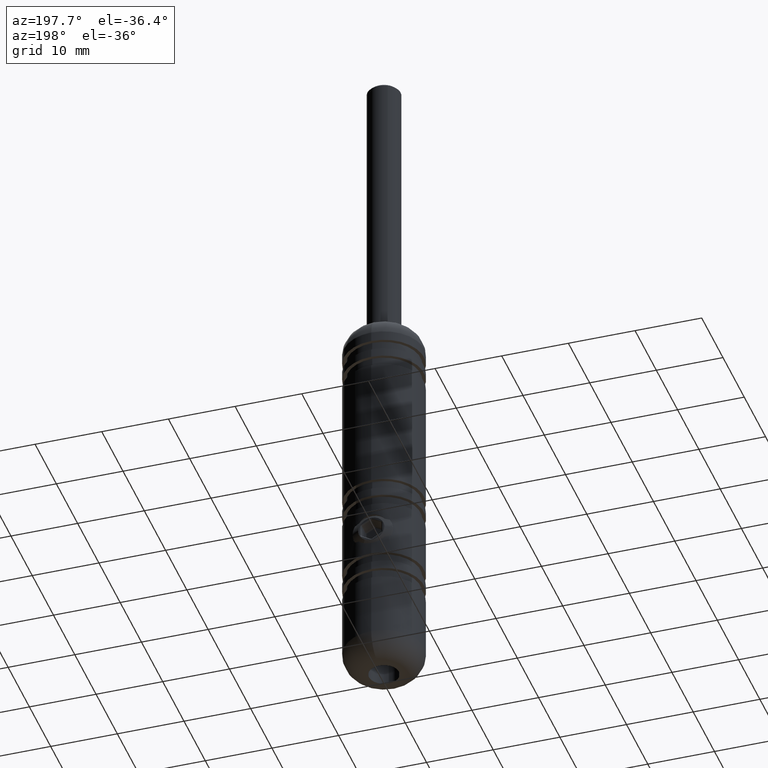
[diagram: clean part render]
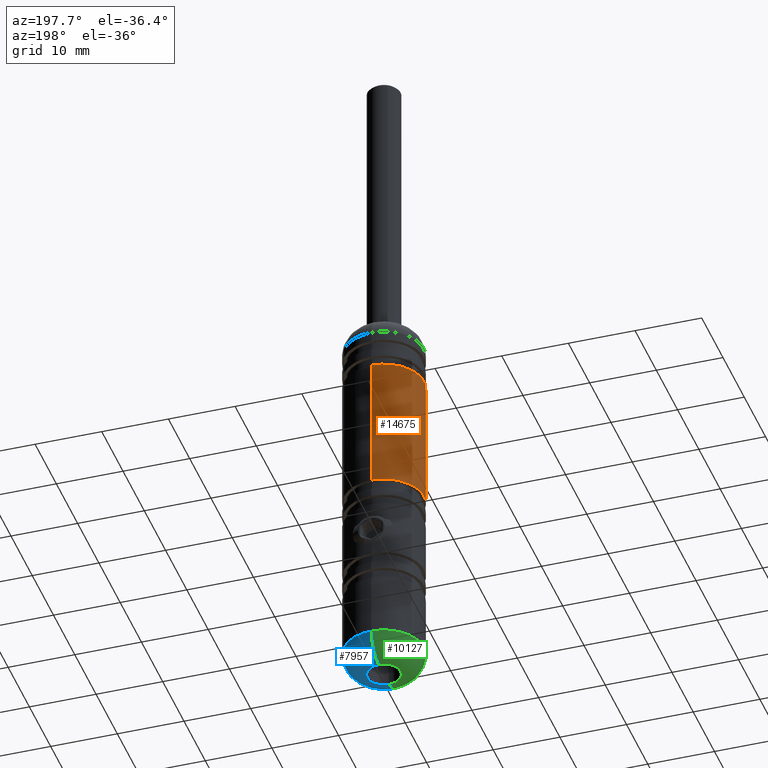
[diagram: same view with three faces highlighted in distinct colors, each labeled with its STEP entity id]
A machine part, auxiliary view with three faces highlighted in distinct colors.
Their STEP definitions:

[orange] entity #14675 — the highlighted cylindrical surface (partial cylindrical patch) has radius 6 mm, axis along (0, 0, 1).
#32 = VECTOR ( 'NONE', #9447, 1000.000000000000000 ) ;
#939 = CARTESIAN_POINT ( 'NONE',  ( -2.370510600221101200, -5.512296490036560700, 4.961080357092435600 ) ) ;
#988 = CARTESIAN_POINT ( 'NONE',  ( -2.243493183772680600, -5.565201832296428300, 5.265307215877004200 ) ) ;
#1409 = EDGE_CURVE ( 'NONE', #1607, #12204, #14516, .T. ) ;
#1607 = VERTEX_POINT ( 'NONE', #2478 ) ;
#1861 = AXIS2_PLACEMENT_3D ( 'NONE', #13291, #5805, #10712 ) ;
#2099 = CARTESIAN_POINT ( 'NONE',  ( -2.369582593462938600, -5.512683608006661900, 3.336677635524405400 ) ) ;
#2146 = CARTESIAN_POINT ( 'NONE',  ( -1.881449780072503400, -5.698635342894772500, 5.804159853786887700 ) ) ;
#2206 = CARTESIAN_POINT ( 'NONE',  ( -2.181708341974952300, -5.590935308825276500, 2.886746876611114800 ) ) ;
#2478 = CARTESIAN_POINT ( 'NONE',  ( 7.347880794884091100E-016, 5.999999999999976000, 0.2999999999999908900 ) ) ;
#2626 = ORIENTED_EDGE ( 'NONE', *, *, #11656, .T. ) ;
#2761 = VERTEX_POINT ( 'NONE', #11202 ) ;
#2850 = DIRECTION ( 'NONE',  ( 0.0000000000000000000, -1.000000000000000000, 6.324512672832133000E-017 ) ) ;
#3014 = FACE_OUTER_BOUND ( 'NONE', #14378, .T. ) ;
#3084 = CIRCLE ( 'NONE', #1861, 5.999999999999976900 ) ;
#3387 = CARTESIAN_POINT ( 'NONE',  ( -0.3313286651165026100, -5.993025678387376800, 1.666609448343192800 ) ) ;
#3437 = CARTESIAN_POINT ( 'NONE',  ( -2.483395613810239300, -5.462051476449260300, 4.481345251360887800 ) ) ;
#3483 = CARTESIAN_POINT ( 'NONE',  ( -0.3294735782554645800, -5.999999999999981300, 6.649999999999997700 ) ) ;
#3531 = CARTESIAN_POINT ( 'NONE',  ( -0.6535671553393454000, -5.966488535110078000, 1.731352177383440800 ) ) ;
#3690 = VERTEX_POINT ( 'NONE', #13022 ) ;
#3980 = ORIENTED_EDGE ( 'NONE', *, *, #13853, .T. ) ;
#4178 = CARTESIAN_POINT ( 'NONE',  ( 0.0000000000000000000, -5.999999999999977800, 30.00000000000000000 ) ) ;
#4234 = VECTOR ( 'NONE', #6511, 1000.000000000000000 ) ;
#4364 = AXIS2_PLACEMENT_3D ( 'NONE', #13086, #11789, #2850 ) ;
#4616 = CARTESIAN_POINT ( 'NONE',  ( -0.8134068127896110200, -5.946577916524676200, 1.780364398952567300 ) ) ;
#4715 = CARTESIAN_POINT ( 'NONE',  ( -2.418593444814170800, -5.491053255503482300, 4.803795991876106600 ) ) ;
#4821 = AXIS2_PLACEMENT_3D ( 'NONE', #5139, #11511, #8999 ) ;
#4835 = LINE ( 'NONE', #4178, #4234 ) ;
#5109 = ORIENTED_EDGE ( 'NONE', *, *, #12682, .T. ) ;
#5139 = CARTESIAN_POINT ( 'NONE',  ( 0.0000000000000000000, 0.0000000000000000000, 30.00000000000000000 ) ) ;
#5451 = CARTESIAN_POINT ( 'NONE',  ( 7.347880794884091100E-016, 5.999999999999977800, 30.00000000000000000 ) ) ;
#5805 = DIRECTION ( 'NONE',  ( -0.0000000000000000000, 6.241551396031028600E-017, 1.000000000000000000 ) ) ;
#5955 = CARTESIAN_POINT ( 'NONE',  ( -2.499892161112044200, -5.454405485178510200, 3.983124959841531300 ) ) ;
#6014 = CARTESIAN_POINT ( 'NONE',  ( -1.528475880810604500, -5.803710641115031900, 6.135004411042070100 ) ) ;
#6064 = CARTESIAN_POINT ( 'NONE',  ( -1.112789484202403800, -5.897869239595869400, 6.394591945689419400 ) ) ;
#6137 = CARTESIAN_POINT ( 'NONE',  ( -1.028501702097774900E-020, -5.999999999999979600, 6.649999999999995900 ) ) ;
#6511 = DIRECTION ( 'NONE',  ( -0.0000000000000000000, 6.241551396031028600E-017, 1.000000000000000000 ) ) ;
#6550 = B_SPLINE_CURVE_WITH_KNOTS ( 'NONE', 3,
 ( #7270, #11040, #3387, #3531, #4616, #12324, #15034, #7156, #7376, #9719, #2206, #2099, #10984, #12275, #5955, #14870, #3437, #4715, #939, #988, #16176, #9770, #2146, #13603, #6014, #11088, #6064, #9817, #3483, #12382 ),
 .UNSPECIFIED., .F., .F.,
 ( 4, 2, 2, 2, 2, 2, 2, 2, 2, 2, 2, 2, 2, 2, 4 ),
 ( 0.0000000000000000000, 0.0004942134665145559000, 0.0009884269330291120200, 0.001482640399543668200, 0.001976853866058224500, 0.002965280799087335600, 0.003459494265601891200, 0.003953707732116446300, 0.004447921198631001900, 0.004942134665145557500, 0.005436348131660113900, 0.005930561598174669500, 0.006424775064689226000, 0.006918988531203782400, 0.007907415464232892700 ),
 .UNSPECIFIED. ) ;
#6998 = EDGE_CURVE ( 'NONE', #12204, #3690, #3084, .T. ) ;
#7156 = CARTESIAN_POINT ( 'NONE',  ( -1.528829007836515000, -5.803619680562190000, 2.165258295589692800 ) ) ;
#7207 = EDGE_CURVE ( 'NONE', #14350, #8014, #6550, .T. ) ;
#7270 = CARTESIAN_POINT ( 'NONE',  ( 0.0000000000000000000, -5.999999999999979600, 1.649999999999998600 ) ) ;
#7376 = CARTESIAN_POINT ( 'NONE',  ( -1.655142058905326700, -5.768422958052113400, 2.269449569317729200 ) ) ;
#7574 = LINE ( 'NONE', #8310, #32 ) ;
#8014 = VERTEX_POINT ( 'NONE', #6137 ) ;
#8310 = CARTESIAN_POINT ( 'NONE',  ( 0.0000000000000000000, -5.999999999999977800, 30.00000000000000000 ) ) ;
#8999 = DIRECTION ( 'NONE',  ( 0.0000000000000000000, -1.000000000000000000, 0.0000000000000000000 ) ) ;
#9264 = DIRECTION ( 'NONE',  ( -0.0000000000000000000, 6.241551396031028600E-017, 1.000000000000000000 ) ) ;
#9447 = DIRECTION ( 'NONE',  ( -0.0000000000000000000, 6.241551396031028600E-017, 1.000000000000000000 ) ) ;
#9583 = ORIENTED_EDGE ( 'NONE', *, *, #1409, .F. ) ;
#9719 = CARTESIAN_POINT ( 'NONE',  ( -1.996726160520223300, -5.663027394641064300, 2.611512018285254900 ) ) ;
#9770 = CARTESIAN_POINT ( 'NONE',  ( -1.985928082928958100, -5.662626222328940500, 5.677192138629327400 ) ) ;
#9817 = CARTESIAN_POINT ( 'NONE',  ( -0.6621311939231092600, -5.971116335839142600, 6.582602729024013200 ) ) ;
#10120 = CARTESIAN_POINT ( 'NONE',  ( 7.347880794884091100E-016, 5.999999999999976000, 20.69999999999999600 ) ) ;
#10712 = DIRECTION ( 'NONE',  ( 0.0000000000000000000, -1.000000000000000000, 0.0000000000000000000 ) ) ;
#10984 = CARTESIAN_POINT ( 'NONE',  ( -2.418590853962362600, -5.491054996713679700, 3.496052146183322900 ) ) ;
#11040 = CARTESIAN_POINT ( 'NONE',  ( -0.1672401054569761500, -5.999999999999979600, 1.649999999999999000 ) ) ;
#11088 = CARTESIAN_POINT ( 'NONE',  ( -1.258252906115199700, -5.868227615580726000, 6.316398083069887400 ) ) ;
#11095 = VECTOR ( 'NONE', #9264, 1000.000000000000000 ) ;
#11202 = CARTESIAN_POINT ( 'NONE',  ( 0.0000000000000000000, -5.999999999999979600, 0.2999999999999916100 ) ) ;
#11509 = ORIENTED_EDGE ( 'NONE', *, *, #7207, .T. ) ;
#11511 = DIRECTION ( 'NONE',  ( -0.0000000000000000000, 6.241551396031028600E-017, 1.000000000000000000 ) ) ;
#11656 = EDGE_CURVE ( 'NONE', #1607, #2761, #13793, .T. ) ;
#11789 = DIRECTION ( 'NONE',  ( -0.0000000000000000000, 6.241551396031028600E-017, 1.000000000000000000 ) ) ;
#11986 = CARTESIAN_POINT ( 'NONE',  ( 0.0000000000000000000, -5.999999999999979600, 1.649999999999998600 ) ) ;
#12204 = VERTEX_POINT ( 'NONE', #10120 ) ;
#12275 = CARTESIAN_POINT ( 'NONE',  ( -2.483561809314555300, -5.461976513600079700, 3.819621045319107700 ) ) ;
#12324 = CARTESIAN_POINT ( 'NONE',  ( -1.115495851646001800, -5.897379805078868400, 1.906682695246938200 ) ) ;
#12353 = CYLINDRICAL_SURFACE ( 'NONE', #4821, 5.999999999999977800 ) ;
#12382 = CARTESIAN_POINT ( 'NONE',  ( -1.028501702097774900E-020, -5.999999999999979600, 6.649999999999995900 ) ) ;
#12682 = EDGE_CURVE ( 'NONE', #8014, #3690, #4835, .T. ) ;
#13022 = CARTESIAN_POINT ( 'NONE',  ( 0.0000000000000000000, -5.999999999999977800, 20.69999999999999600 ) ) ;
#13086 = CARTESIAN_POINT ( 'NONE',  ( 0.0000000000000000000, -1.853740764621216100E-015, 0.2999999999999912700 ) ) ;
#13291 = CARTESIAN_POINT ( 'NONE',  ( 0.0000000000000000000, -5.804642798308857600E-016, 20.69999999999999600 ) ) ;
#13603 = CARTESIAN_POINT ( 'NONE',  ( -1.652909006526312600, -5.769071837164838200, 6.032548781030476100 ) ) ;
#13793 = CIRCLE ( 'NONE', #4364, 5.999999999999977800 ) ;
#13853 = EDGE_CURVE ( 'NONE', #2761, #14350, #7574, .T. ) ;
#14350 = VERTEX_POINT ( 'NONE', #11986 ) ;
#14378 = EDGE_LOOP ( 'NONE', ( #9583, #2626, #3980, #11509, #5109, #14478 ) ) ;
#14478 = ORIENTED_EDGE ( 'NONE', *, *, #6998, .F. ) ;
#14516 = LINE ( 'NONE', #5451, #11095 ) ;
#14675 = ADVANCED_FACE ( 'NONE', ( #3014 ), #12353, .T. ) ;
#14870 = CARTESIAN_POINT ( 'NONE',  ( -2.500106784638723000, -5.454307112671441100, 4.313628119896179700 ) ) ;
#15034 = CARTESIAN_POINT ( 'NONE',  ( -1.258442380232151600, -5.868189014291103500, 1.983703495810523100 ) ) ;
#16176 = CARTESIAN_POINT ( 'NONE',  ( -2.166361182966829000, -5.596081245774383800, 5.408215165936123700 ) ) ;

[blue] entity #7957 — the highlighted toroidal blend (fillet) surface has major radius 2.5 mm and minor (blend) radius 3.5 mm.
#63 = CARTESIAN_POINT ( 'NONE',  ( 7.347880794884108900E-016, 5.999999999999987600, -26.49999999999999600 ) ) ;
#215 = ORIENTED_EDGE ( 'NONE', *, *, #6108, .T. ) ;
#650 = AXIS2_PLACEMENT_3D ( 'NONE', #3735, #5125, #1136 ) ;
#1109 = CARTESIAN_POINT ( 'NONE',  ( 0.0000000000000000000, -2.499999999999995100, -30.00000000000000000 ) ) ;
#1120 = DIRECTION ( 'NONE',  ( 0.0000000000000000000, -1.000000000000000000, 0.0000000000000000000 ) ) ;
#1136 = DIRECTION ( 'NONE',  ( 0.0000000000000000000, 0.0000000000000000000, 1.000000000000000000 ) ) ;
#1337 = CARTESIAN_POINT ( 'NONE',  ( 0.0000000000000000000, -5.999999999999994700, -26.49999999999999600 ) ) ;
#1487 = AXIS2_PLACEMENT_3D ( 'NONE', #8695, #7446, #1120 ) ;
#1490 = EDGE_CURVE ( 'NONE', #15291, #6090, #6349, .T. ) ;
#1786 = EDGE_CURVE ( 'NONE', #10804, #15291, #12699, .T. ) ;
#1988 = CARTESIAN_POINT ( 'NONE',  ( 5.204748896376240800E-016, 2.499999999999987600, -30.00000000000000000 ) ) ;
#3735 = CARTESIAN_POINT ( 'NONE',  ( 0.0000000000000000000, -2.499999999999994700, -26.49999999999999600 ) ) ;
#4594 = CARTESIAN_POINT ( 'NONE',  ( 0.0000000000000000000, -3.526476538757531000E-015, -26.49999999999999600 ) ) ;
#4620 = AXIS2_PLACEMENT_3D ( 'NONE', #8758, #12730, #5171 ) ;
#5071 = CIRCLE ( 'NONE', #4620, 3.500000000000000000 ) ;
#5125 = DIRECTION ( 'NONE',  ( -1.000000000000000000, -0.0000000000000000000, 0.0000000000000000000 ) ) ;
#5133 = EDGE_CURVE ( 'NONE', #6090, #6102, #14457, .T. ) ;
#5171 = DIRECTION ( 'NONE',  ( 1.224646799147353200E-016, 1.000000000000000000, 0.0000000000000000000 ) ) ;
#6090 = VERTEX_POINT ( 'NONE', #1337 ) ;
#6102 = VERTEX_POINT ( 'NONE', #63 ) ;
#6108 = EDGE_CURVE ( 'NONE', #10804, #6102, #5071, .T. ) ;
#6349 = CIRCLE ( 'NONE', #650, 3.499999999999999600 ) ;
#7446 = DIRECTION ( 'NONE',  ( 0.0000000000000000000, -6.241551396031028600E-017, -1.000000000000000000 ) ) ;
#7453 = DIRECTION ( 'NONE',  ( 0.0000000000000000000, -1.000000000000000000, 6.241551396031028600E-017 ) ) ;
#7957 = ADVANCED_FACE ( 'NONE', ( #13800 ), #10121, .T. ) ;
#8695 = CARTESIAN_POINT ( 'NONE',  ( 0.0000000000000000000, -3.744930837618617200E-015, -30.00000000000000000 ) ) ;
#8758 = CARTESIAN_POINT ( 'NONE',  ( 3.061616997868372300E-016, 2.499999999999988000, -26.49999999999999600 ) ) ;
#10121 = TOROIDAL_SURFACE ( 'NONE', #13164, 2.499999999999991600, 3.500000000000000000 ) ;
#10331 = AXIS2_PLACEMENT_3D ( 'NONE', #4594, #12302, #15984 ) ;
#10804 = VERTEX_POINT ( 'NONE', #1988 ) ;
#11059 = EDGE_LOOP ( 'NONE', ( #16387, #215, #15213, #11769 ) ) ;
#11769 = ORIENTED_EDGE ( 'NONE', *, *, #1490, .F. ) ;
#12302 = DIRECTION ( 'NONE',  ( -0.0000000000000000000, 6.241551396031028600E-017, 1.000000000000000000 ) ) ;
#12571 = CARTESIAN_POINT ( 'NONE',  ( 0.0000000000000000000, -3.526476538757531000E-015, -26.49999999999999600 ) ) ;
#12699 = CIRCLE ( 'NONE', #1487, 2.499999999999991600 ) ;
#12730 = DIRECTION ( 'NONE',  ( 1.000000000000000000, -1.224646799147353200E-016, 7.643695938863093300E-033 ) ) ;
#13164 = AXIS2_PLACEMENT_3D ( 'NONE', #12571, #16414, #7453 ) ;
#13800 = FACE_OUTER_BOUND ( 'NONE', #11059, .T. ) ;
#14457 = CIRCLE ( 'NONE', #10331, 5.999999999999991100 ) ;
#15213 = ORIENTED_EDGE ( 'NONE', *, *, #5133, .F. ) ;
#15291 = VERTEX_POINT ( 'NONE', #1109 ) ;
#15984 = DIRECTION ( 'NONE',  ( 0.0000000000000000000, -1.000000000000000000, 0.0000000000000000000 ) ) ;
#16387 = ORIENTED_EDGE ( 'NONE', *, *, #1786, .F. ) ;
#16414 = DIRECTION ( 'NONE',  ( -0.0000000000000000000, 6.241551396031028600E-017, 1.000000000000000000 ) ) ;

[green] entity #10127 — the highlighted toroidal blend (fillet) surface has major radius 2.5 mm and minor (blend) radius 3.5 mm.
#63 = CARTESIAN_POINT ( 'NONE',  ( 7.347880794884108900E-016, 5.999999999999987600, -26.49999999999999600 ) ) ;
#201 = ORIENTED_EDGE ( 'NONE', *, *, #6108, .F. ) ;
#650 = AXIS2_PLACEMENT_3D ( 'NONE', #3735, #5125, #1136 ) ;
#824 = AXIS2_PLACEMENT_3D ( 'NONE', #2165, #5927, #3455 ) ;
#978 = EDGE_CURVE ( 'NONE', #6102, #6090, #2759, .T. ) ;
#1109 = CARTESIAN_POINT ( 'NONE',  ( 0.0000000000000000000, -2.499999999999995100, -30.00000000000000000 ) ) ;
#1136 = DIRECTION ( 'NONE',  ( 0.0000000000000000000, 0.0000000000000000000, 1.000000000000000000 ) ) ;
#1337 = CARTESIAN_POINT ( 'NONE',  ( 0.0000000000000000000, -5.999999999999994700, -26.49999999999999600 ) ) ;
#1416 = ORIENTED_EDGE ( 'NONE', *, *, #1490, .T. ) ;
#1490 = EDGE_CURVE ( 'NONE', #15291, #6090, #6349, .T. ) ;
#1533 = CARTESIAN_POINT ( 'NONE',  ( 0.0000000000000000000, -3.526476538757531000E-015, -26.49999999999999600 ) ) ;
#1988 = CARTESIAN_POINT ( 'NONE',  ( 5.204748896376240800E-016, 2.499999999999987600, -30.00000000000000000 ) ) ;
#2165 = CARTESIAN_POINT ( 'NONE',  ( 0.0000000000000000000, -3.526476538757531000E-015, -26.49999999999999600 ) ) ;
#2759 = CIRCLE ( 'NONE', #9001, 5.999999999999991100 ) ;
#3405 = ORIENTED_EDGE ( 'NONE', *, *, #4039, .F. ) ;
#3455 = DIRECTION ( 'NONE',  ( 0.0000000000000000000, -1.000000000000000000, 6.241551396031028600E-017 ) ) ;
#3735 = CARTESIAN_POINT ( 'NONE',  ( 0.0000000000000000000, -2.499999999999994700, -26.49999999999999600 ) ) ;
#3961 = CARTESIAN_POINT ( 'NONE',  ( 0.0000000000000000000, -3.744930837618617200E-015, -30.00000000000000000 ) ) ;
#4039 = EDGE_CURVE ( 'NONE', #15291, #10804, #4533, .T. ) ;
#4533 = CIRCLE ( 'NONE', #16571, 2.499999999999991600 ) ;
#4620 = AXIS2_PLACEMENT_3D ( 'NONE', #8758, #12730, #5171 ) ;
#5071 = CIRCLE ( 'NONE', #4620, 3.500000000000000000 ) ;
#5125 = DIRECTION ( 'NONE',  ( -1.000000000000000000, -0.0000000000000000000, 0.0000000000000000000 ) ) ;
#5171 = DIRECTION ( 'NONE',  ( 1.224646799147353200E-016, 1.000000000000000000, 0.0000000000000000000 ) ) ;
#5252 = DIRECTION ( 'NONE',  ( 0.0000000000000000000, -6.241551396031028600E-017, -1.000000000000000000 ) ) ;
#5927 = DIRECTION ( 'NONE',  ( -0.0000000000000000000, 6.241551396031028600E-017, 1.000000000000000000 ) ) ;
#6090 = VERTEX_POINT ( 'NONE', #1337 ) ;
#6102 = VERTEX_POINT ( 'NONE', #63 ) ;
#6108 = EDGE_CURVE ( 'NONE', #10804, #6102, #5071, .T. ) ;
#6349 = CIRCLE ( 'NONE', #650, 3.499999999999999600 ) ;
#6439 = DIRECTION ( 'NONE',  ( 0.0000000000000000000, -1.000000000000000000, 0.0000000000000000000 ) ) ;
#7183 = EDGE_LOOP ( 'NONE', ( #201, #3405, #1416, #8696 ) ) ;
#8696 = ORIENTED_EDGE ( 'NONE', *, *, #978, .F. ) ;
#8758 = CARTESIAN_POINT ( 'NONE',  ( 3.061616997868372300E-016, 2.499999999999988000, -26.49999999999999600 ) ) ;
#8899 = DIRECTION ( 'NONE',  ( -0.0000000000000000000, 6.241551396031028600E-017, 1.000000000000000000 ) ) ;
#9001 = AXIS2_PLACEMENT_3D ( 'NONE', #1533, #8899, #6439 ) ;
#10127 = ADVANCED_FACE ( 'NONE', ( #12444 ), #13615, .T. ) ;
#10804 = VERTEX_POINT ( 'NONE', #1988 ) ;
#12444 = FACE_OUTER_BOUND ( 'NONE', #7183, .T. ) ;
#12730 = DIRECTION ( 'NONE',  ( 1.000000000000000000, -1.224646799147353200E-016, 7.643695938863093300E-033 ) ) ;
#13615 = TOROIDAL_SURFACE ( 'NONE', #824, 2.499999999999991600, 3.500000000000000000 ) ;
#14142 = DIRECTION ( 'NONE',  ( 0.0000000000000000000, -1.000000000000000000, 0.0000000000000000000 ) ) ;
#15291 = VERTEX_POINT ( 'NONE', #1109 ) ;
#16571 = AXIS2_PLACEMENT_3D ( 'NONE', #3961, #5252, #14142 ) ;